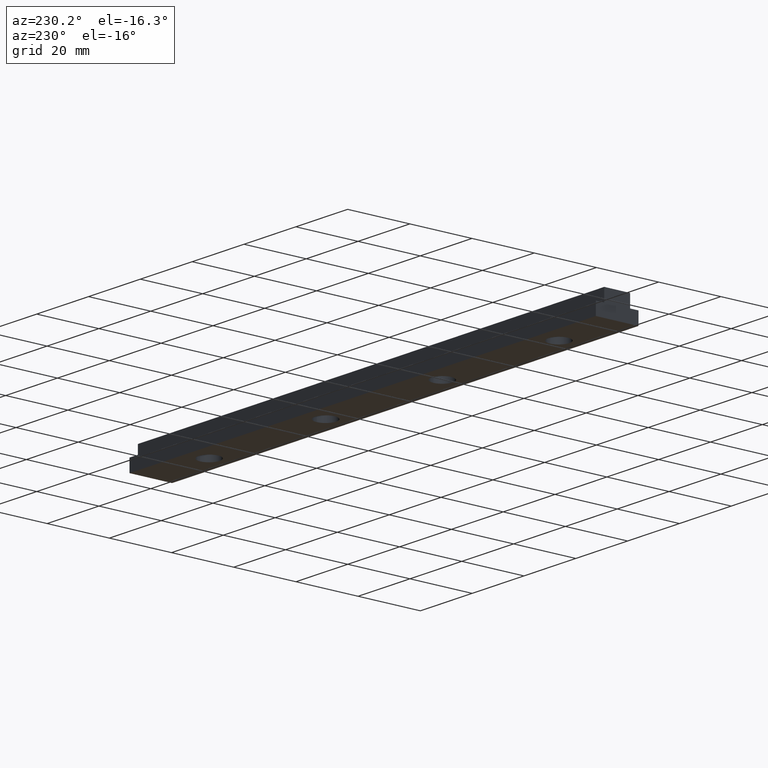
[diagram: clean part render]
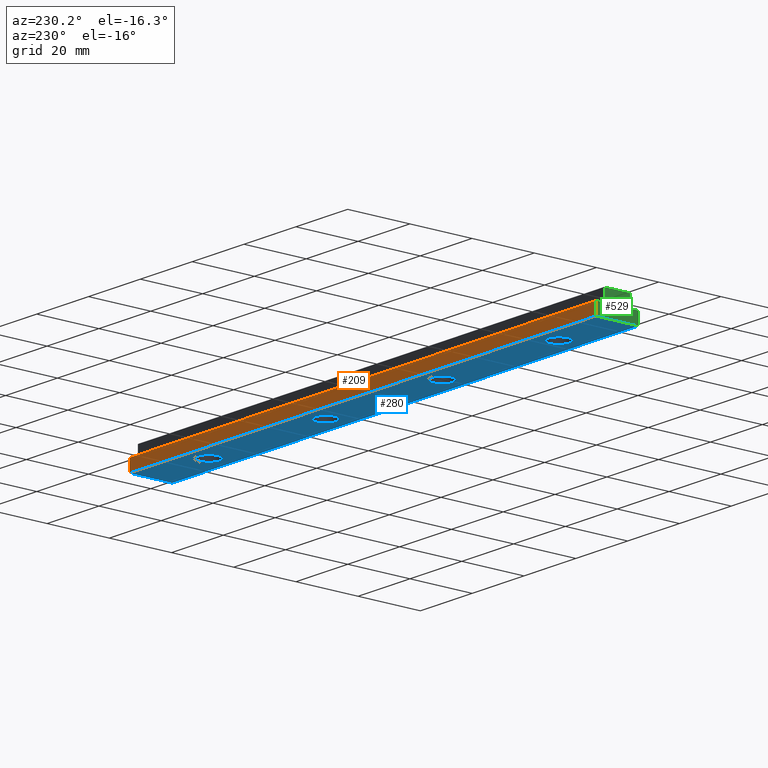
[diagram: same view with three faces highlighted in distinct colors, each labeled with its STEP entity id]
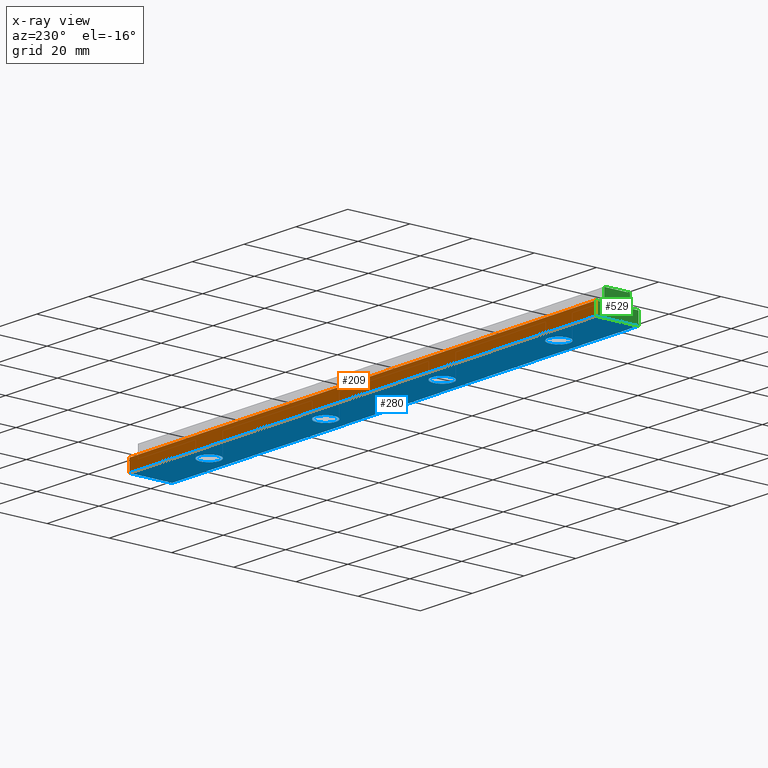
[diagram: x-ray of the same camera — body ghosted, the three highlighted faces saturated]
A machine part, auxiliary view with three faces highlighted in distinct colors.
The next image is the same camera in x-ray (body ghosted, the three faces saturated) — at least one of them is partly hidden behind the body in this view.
Their STEP definitions:

[orange] entity #209 — the highlighted planar face has unit normal (0, 1, 0).
#170=CARTESIAN_POINT('',(189.0,6.850000000000009,-0.200000000000000));
#171=DIRECTION('',(0.0,1.0,0.0));
#172=DIRECTION('',(-1.0,0.0,0.0));
#173=AXIS2_PLACEMENT_3D('',#170,#171,#172);
#174=PLANE('',#173);
#175=CARTESIAN_POINT('',(3.133272E-015,6.849999999999998,4.000000000000000));
#176=VERTEX_POINT('',#175);
#177=CARTESIAN_POINT('',(3.133272E-015,6.849999999999998,-4.194415E-016));
#178=VERTEX_POINT('',#177);
#179=CARTESIAN_POINT('',(3.133272E-015,6.849999999999998,4.000000000000000));
#180=DIRECTION('',(0.0,0.0,-1.0));
#181=VECTOR('',#180,4.0);
#182=LINE('',#179,#181);
#183=EDGE_CURVE('',#176,#178,#182,.T.);
#184=ORIENTED_EDGE('',*,*,#183,.F.);
#185=CARTESIAN_POINT('',(180.0,6.850000000000009,4.000000000000000));
#186=VERTEX_POINT('',#185);
#187=CARTESIAN_POINT('',(180.0,6.850000000000009,4.000000000000000));
#188=DIRECTION('',(-1.0,0.0,0.0));
#189=VECTOR('',#188,180.0);
#190=LINE('',#187,#189);
#191=EDGE_CURVE('',#186,#176,#190,.T.);
#192=ORIENTED_EDGE('',*,*,#191,.F.);
#193=CARTESIAN_POINT('',(180.0,6.850000000000009,-4.194415E-016));
#194=VERTEX_POINT('',#193);
#195=CARTESIAN_POINT('',(180.0,6.850000000000009,4.000000000000000));
#196=DIRECTION('',(0.0,0.0,-1.0));
#197=VECTOR('',#196,4.0);
#198=LINE('',#195,#197);
#199=EDGE_CURVE('',#186,#194,#198,.T.);
#200=ORIENTED_EDGE('',*,*,#199,.T.);
#201=CARTESIAN_POINT('',(180.0,6.850000000000009,-4.194415E-016));
#202=DIRECTION('',(-1.0,0.0,0.0));
#203=VECTOR('',#202,180.0);
#204=LINE('',#201,#203);
#205=EDGE_CURVE('',#194,#178,#204,.T.);
#206=ORIENTED_EDGE('',*,*,#205,.T.);
#207=EDGE_LOOP('',(#184,#192,#200,#206));
#208=FACE_OUTER_BOUND('',#207,.T.);
#209=ADVANCED_FACE('',(#208),#174,.T.);

[blue] entity #280 — the highlighted planar face has unit normal (0, 0, -1).
#18=CARTESIAN_POINT('',(109.100000000000050,1.023316E-014,-6.266005E-031));
#19=VERTEX_POINT('',#18);
#26=CARTESIAN_POINT('',(115.900000000000050,1.064954E-014,-6.520964E-031));
#27=VERTEX_POINT('',#26);
#28=CARTESIAN_POINT('',(112.500000000000040,1.044135E-014,-6.393484E-031));
#29=DIRECTION('',(0.0,-6.123234E-017,-1.0));
#30=DIRECTION('',(1.0,6.123234E-017,-3.749399E-033));
#31=AXIS2_PLACEMENT_3D('',#28,#29,#30);
#32=CIRCLE('',#31,3.400000000000001);
#33=EDGE_CURVE('',#19,#27,#32,.T.);
#60=CARTESIAN_POINT('',(154.100000000000050,1.298862E-014,-7.953234E-031));
#61=VERTEX_POINT('',#60);
#68=CARTESIAN_POINT('',(160.900000000000010,1.340500E-014,-8.208193E-031));
#69=VERTEX_POINT('',#68);
#70=CARTESIAN_POINT('',(157.500000000000060,1.319681E-014,-8.080714E-031));
#71=DIRECTION('',(0.0,-6.123234E-017,-1.0));
#72=DIRECTION('',(1.0,6.123234E-017,-3.749399E-033));
#73=AXIS2_PLACEMENT_3D('',#70,#71,#72);
#74=CIRCLE('',#73,3.399999999999987);
#75=EDGE_CURVE('',#61,#69,#74,.T.);
#102=CARTESIAN_POINT('',(19.100000000000005,4.722251E-015,-2.891545E-031));
#103=VERTEX_POINT('',#102);
#110=CARTESIAN_POINT('',(25.900000000000002,5.138631E-015,-3.146504E-031));
#111=VERTEX_POINT('',#110);
#112=CARTESIAN_POINT('',(22.500000000000004,4.930441E-015,-3.019025E-031));
#113=DIRECTION('',(0.0,-6.123234E-017,-1.0));
#114=DIRECTION('',(1.0,6.123234E-017,-3.749399E-033));
#115=AXIS2_PLACEMENT_3D('',#112,#113,#114);
#116=CIRCLE('',#115,3.400000000000001);
#117=EDGE_CURVE('',#103,#111,#116,.T.);
#144=CARTESIAN_POINT('',(64.100000000000023,7.477707E-015,-4.578775E-031));
#145=VERTEX_POINT('',#144);
#152=CARTESIAN_POINT('',(70.900000000000020,7.894087E-015,-4.833734E-031));
#153=VERTEX_POINT('',#152);
#154=CARTESIAN_POINT('',(67.500000000000000,7.685897E-015,-4.706254E-031));
#155=DIRECTION('',(0.0,-6.123234E-017,-1.0));
#156=DIRECTION('',(1.0,6.123234E-017,-3.749399E-033));
#157=AXIS2_PLACEMENT_3D('',#154,#155,#156);
#158=CIRCLE('',#157,3.400000000000001);
#159=EDGE_CURVE('',#145,#153,#158,.T.);
#177=CARTESIAN_POINT('',(3.133272E-015,6.849999999999998,-4.194415E-016));
#178=VERTEX_POINT('',#177);
#193=CARTESIAN_POINT('',(180.0,6.850000000000009,-4.194415E-016));
#194=VERTEX_POINT('',#193);
#201=CARTESIAN_POINT('',(180.0,6.850000000000009,-4.194415E-016));
#202=DIRECTION('',(-1.0,0.0,0.0));
#203=VECTOR('',#202,180.0);
#204=LINE('',#201,#203);
#205=EDGE_CURVE('',#194,#178,#204,.T.);
#210=CARTESIAN_POINT('',(-8.999999999999996,7.534999999999999,-4.613857E-016));
#211=DIRECTION('',(0.0,0.0,-1.0));
#212=DIRECTION('',(1.0,0.0,0.0));
#213=AXIS2_PLACEMENT_3D('',#210,#211,#212);
#214=PLANE('',#213);
#215=CARTESIAN_POINT('',(3.972155E-015,-6.849999999999994,4.194415E-016));
#216=VERTEX_POINT('',#215);
#217=CARTESIAN_POINT('',(3.133272E-015,6.849999999999998,-4.194415E-016));
#218=DIRECTION('',(0.0,-1.0,0.0));
#219=VECTOR('',#218,13.699999999999996);
#220=LINE('',#217,#219);
#221=EDGE_CURVE('',#178,#216,#220,.T.);
#222=ORIENTED_EDGE('',*,*,#221,.F.);
#223=ORIENTED_EDGE('',*,*,#205,.F.);
#224=CARTESIAN_POINT('',(180.0,-6.849999999999984,4.194415E-016));
#225=VERTEX_POINT('',#224);
#226=CARTESIAN_POINT('',(180.0,6.850000000000009,-4.194415E-016));
#227=DIRECTION('',(0.0,-1.0,0.0));
#228=VECTOR('',#227,13.699999999999996);
#229=LINE('',#226,#228);
#230=EDGE_CURVE('',#194,#225,#229,.T.);
#231=ORIENTED_EDGE('',*,*,#230,.T.);
#232=CARTESIAN_POINT('',(180.0,-6.849999999999984,4.194415E-016));
#233=DIRECTION('',(-1.0,0.0,0.0));
#234=VECTOR('',#233,180.0);
#235=LINE('',#232,#234);
#236=EDGE_CURVE('',#225,#216,#235,.T.);
#237=ORIENTED_EDGE('',*,*,#236,.T.);
#238=EDGE_LOOP('',(#222,#223,#231,#237));
#239=FACE_OUTER_BOUND('',#238,.T.);
#240=CARTESIAN_POINT('',(157.500000000000060,1.319681E-014,-8.080714E-031));
#241=DIRECTION('',(0.0,-6.123234E-017,-1.0));
#242=DIRECTION('',(1.0,6.123234E-017,-3.749399E-033));
#243=AXIS2_PLACEMENT_3D('',#240,#241,#242);
#244=CIRCLE('',#243,3.399999999999987);
#245=EDGE_CURVE('',#69,#61,#244,.T.);
#246=ORIENTED_EDGE('',*,*,#245,.F.);
#247=ORIENTED_EDGE('',*,*,#75,.F.);
#248=EDGE_LOOP('',(#246,#247));
#249=FACE_BOUND('',#248,.T.);
#250=CARTESIAN_POINT('',(22.500000000000004,4.930441E-015,-3.019025E-031));
#251=DIRECTION('',(0.0,-6.123234E-017,-1.0));
#252=DIRECTION('',(1.0,6.123234E-017,-3.749399E-033));
#253=AXIS2_PLACEMENT_3D('',#250,#251,#252);
#254=CIRCLE('',#253,3.400000000000001);
#255=EDGE_CURVE('',#111,#103,#254,.T.);
#256=ORIENTED_EDGE('',*,*,#255,.F.);
#257=ORIENTED_EDGE('',*,*,#117,.F.);
#258=EDGE_LOOP('',(#256,#257));
#259=FACE_BOUND('',#258,.T.);
#260=CARTESIAN_POINT('',(67.500000000000000,7.685897E-015,-4.706254E-031));
#261=DIRECTION('',(0.0,-6.123234E-017,-1.0));
#262=DIRECTION('',(1.0,6.123234E-017,-3.749399E-033));
#263=AXIS2_PLACEMENT_3D('',#260,#261,#262);
#264=CIRCLE('',#263,3.400000000000001);
#265=EDGE_CURVE('',#153,#145,#264,.T.);
#266=ORIENTED_EDGE('',*,*,#265,.F.);
#267=ORIENTED_EDGE('',*,*,#159,.F.);
#268=EDGE_LOOP('',(#266,#267));
#269=FACE_BOUND('',#268,.T.);
#270=CARTESIAN_POINT('',(112.500000000000040,1.044135E-014,-6.393484E-031));
#271=DIRECTION('',(0.0,-6.123234E-017,-1.0));
#272=DIRECTION('',(1.0,6.123234E-017,-3.749399E-033));
#273=AXIS2_PLACEMENT_3D('',#270,#271,#272);
#274=CIRCLE('',#273,3.400000000000001);
#275=EDGE_CURVE('',#27,#19,#274,.T.);
#276=ORIENTED_EDGE('',*,*,#275,.F.);
#277=ORIENTED_EDGE('',*,*,#33,.F.);
#278=EDGE_LOOP('',(#276,#277));
#279=FACE_BOUND('',#278,.T.);
#280=ADVANCED_FACE('',(#239,#249,#259,#269,#279),#214,.T.);

[green] entity #529 — the highlighted planar face has unit normal (-1, 0, 0).
#175=CARTESIAN_POINT('',(3.133272E-015,6.849999999999998,4.000000000000000));
#176=VERTEX_POINT('',#175);
#177=CARTESIAN_POINT('',(3.133272E-015,6.849999999999998,-4.194415E-016));
#178=VERTEX_POINT('',#177);
#179=CARTESIAN_POINT('',(3.133272E-015,6.849999999999998,4.000000000000000));
#180=DIRECTION('',(0.0,0.0,-1.0));
#181=VECTOR('',#180,4.0);
#182=LINE('',#179,#181);
#183=EDGE_CURVE('',#176,#178,#182,.T.);
#215=CARTESIAN_POINT('',(3.972155E-015,-6.849999999999994,4.194415E-016));
#216=VERTEX_POINT('',#215);
#217=CARTESIAN_POINT('',(3.133272E-015,6.849999999999998,-4.194415E-016));
#218=DIRECTION('',(0.0,-1.0,0.0));
#219=VECTOR('',#218,13.699999999999996);
#220=LINE('',#217,#219);
#221=EDGE_CURVE('',#178,#216,#220,.T.);
#286=CARTESIAN_POINT('',(3.972155E-015,-6.849999999999998,4.0));
#287=VERTEX_POINT('',#286);
#288=CARTESIAN_POINT('',(3.972155E-015,-6.849999999999994,4.194415E-016));
#289=DIRECTION('',(0.0,0.0,1.0));
#290=VECTOR('',#289,4.000000000000000);
#291=LINE('',#288,#290);
#292=EDGE_CURVE('',#216,#287,#291,.T.);
#317=CARTESIAN_POINT('',(3.806828E-015,-4.149999999999995,4.0));
#318=VERTEX_POINT('',#317);
#319=CARTESIAN_POINT('',(3.972155E-015,-6.849999999999998,4.0));
#320=DIRECTION('',(0.0,1.0,0.0));
#321=VECTOR('',#320,2.700000000000003);
#322=LINE('',#319,#321);
#323=EDGE_CURVE('',#287,#318,#322,.T.);
#348=CARTESIAN_POINT('',(3.806828E-015,-4.149999999999994,8.0));
#349=VERTEX_POINT('',#348);
#350=CARTESIAN_POINT('',(3.806828E-015,-4.149999999999995,4.0));
#351=DIRECTION('',(0.0,0.0,1.0));
#352=VECTOR('',#351,4.0);
#353=LINE('',#350,#352);
#354=EDGE_CURVE('',#318,#349,#353,.T.);
#379=CARTESIAN_POINT('',(3.298599E-015,4.150000000000003,8.0));
#380=VERTEX_POINT('',#379);
#381=CARTESIAN_POINT('',(3.806828E-015,-4.149999999999994,8.0));
#382=DIRECTION('',(0.0,1.0,0.0));
#383=VECTOR('',#382,8.299999999999997);
#384=LINE('',#381,#383);
#385=EDGE_CURVE('',#349,#380,#384,.T.);
#450=CARTESIAN_POINT('',(3.298599E-015,4.150000000000002,4.000000000000000));
#451=VERTEX_POINT('',#450);
#452=CARTESIAN_POINT('',(3.298599E-015,4.150000000000003,8.0));
#453=DIRECTION('',(0.0,0.0,-1.0));
#454=VECTOR('',#453,4.0);
#455=LINE('',#452,#454);
#456=EDGE_CURVE('',#380,#451,#455,.T.);
#481=CARTESIAN_POINT('',(3.298599E-015,4.150000000000002,4.000000000000000));
#482=DIRECTION('',(0.0,1.0,0.0));
#483=VECTOR('',#482,2.699999999999996);
#484=LINE('',#481,#483);
#485=EDGE_CURVE('',#451,#176,#484,.T.);
#514=CARTESIAN_POINT('',(3.091328E-015,7.535000000000000,-0.400000000000001));
#515=DIRECTION('',(-1.0,0.0,0.0));
#516=DIRECTION('',(0.0,-1.0,0.0));
#517=AXIS2_PLACEMENT_3D('',#514,#515,#516);
#518=PLANE('',#517);
#519=ORIENTED_EDGE('',*,*,#183,.T.);
#520=ORIENTED_EDGE('',*,*,#221,.T.);
#521=ORIENTED_EDGE('',*,*,#292,.T.);
#522=ORIENTED_EDGE('',*,*,#323,.T.);
#523=ORIENTED_EDGE('',*,*,#354,.T.);
#524=ORIENTED_EDGE('',*,*,#385,.T.);
#525=ORIENTED_EDGE('',*,*,#456,.T.);
#526=ORIENTED_EDGE('',*,*,#485,.T.);
#527=EDGE_LOOP('',(#519,#520,#521,#522,#523,#524,#525,#526));
#528=FACE_OUTER_BOUND('',#527,.T.);
#529=ADVANCED_FACE('',(#528),#518,.T.);